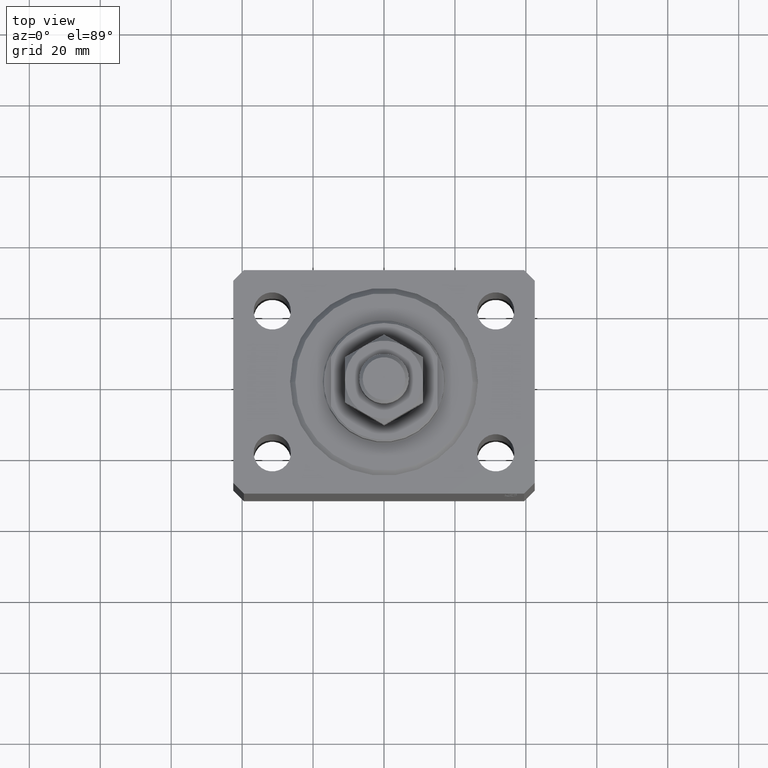
[diagram: clean part render]
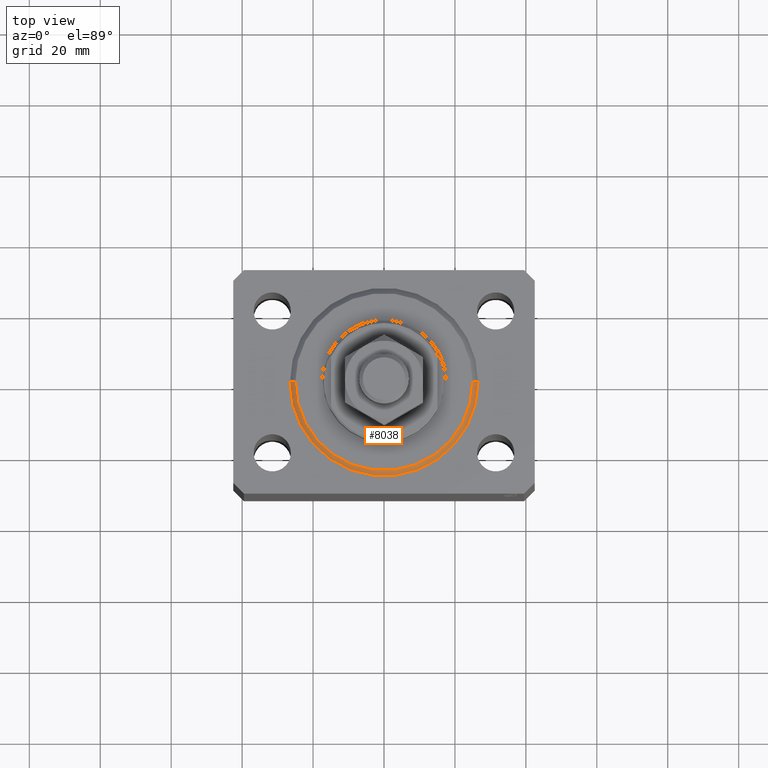
[diagram: same view with one face highlighted and labeled with its STEP entity id]
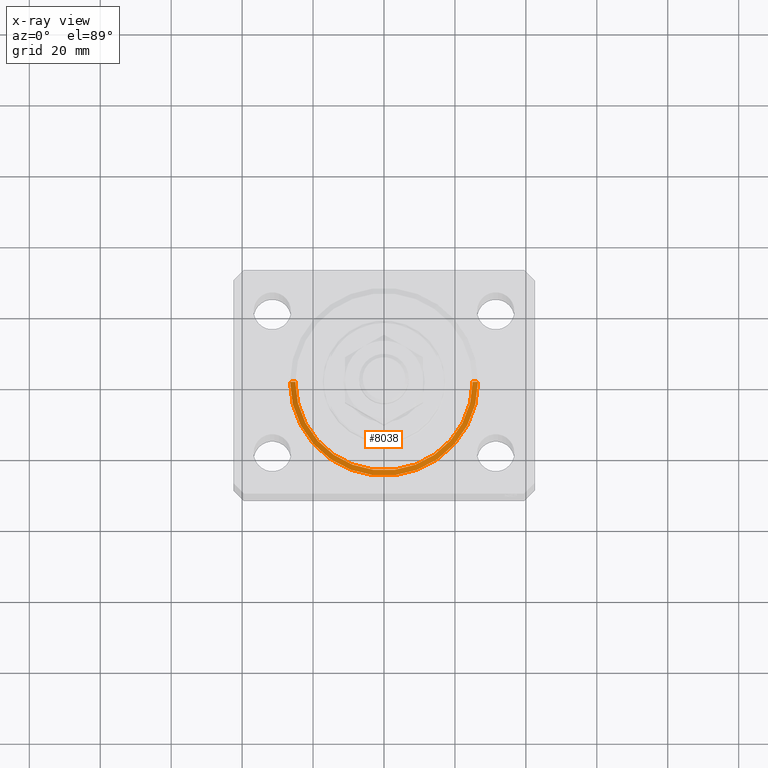
[diagram: x-ray of the same camera — body ghosted, the highlighted face saturated]
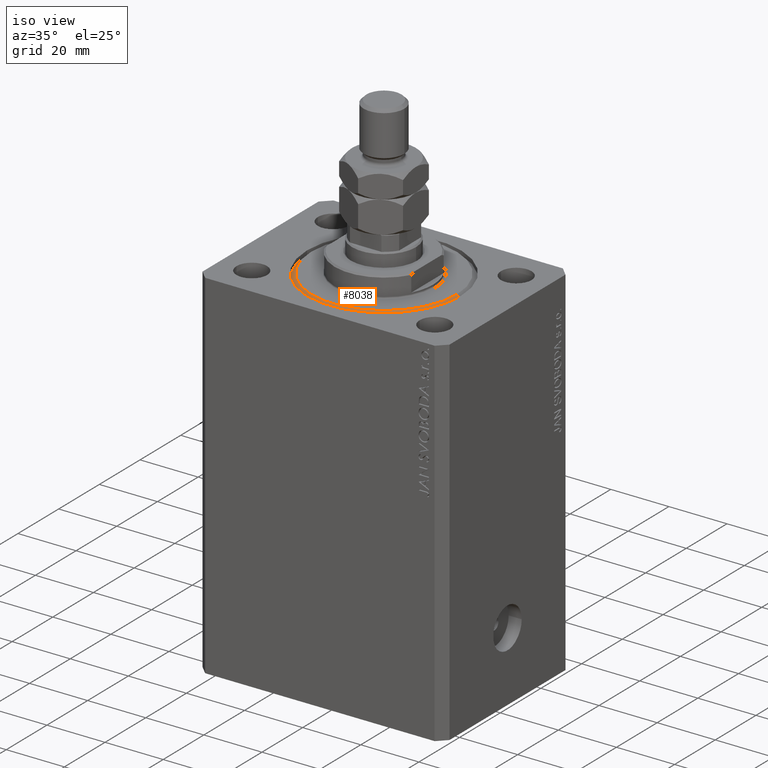
[diagram: same view with one face highlighted and labeled with its STEP entity id]
A machine part, top view. The second image highlights one B-rep face of the part: STEP entity #8038.
The next image is the same camera in x-ray: the body ghosted, the highlighted face saturated — about 0% of this face is hidden behind the body in this view.
A second angle (iso view) of the same face is appended — the face is thin or edge-on in the first view.
In plain terms, the highlighted conical surface has half-angle 45 deg.
Its self-contained STEP definition (entity closure, byte-faithful):
#945 = FACE_OUTER_BOUND ( 'NONE', #1632, .T. ) ;
#1350 = ORIENTED_EDGE ( 'NONE', *, *, #34283, .F. ) ;
#1391 = VERTEX_POINT ( 'NONE', #5090 ) ;
#1632 = EDGE_LOOP ( 'NONE', ( #22610, #1350, #29392, #35580 ) ) ;
#2028 = VERTEX_POINT ( 'NONE', #33735 ) ;
#4714 = CONICAL_SURFACE ( 'NONE', #9214, 26.50000000000000355, 0.7853981633974495002 ) ;
#5090 = CARTESIAN_POINT ( 'NONE',  ( -26.50000000000000355, 0.000000000000000000, 1.500000000000018652 ) ) ;
#5756 = CARTESIAN_POINT ( 'NONE',  ( 0.000000000000000000, 0.000000000000000000, 0.000000000000000000 ) ) ;
#7243 = AXIS2_PLACEMENT_3D ( 'NONE', #40855, #23352, #27546 ) ;
#7789 = CIRCLE ( 'NONE', #18221, 24.99999999999998224 ) ;
#8038 = ADVANCED_FACE ( 'NONE', ( #945 ), #4714, .T. ) ;
#9214 = AXIS2_PLACEMENT_3D ( 'NONE', #19606, #30350, #44587 ) ;
#15502 = DIRECTION ( 'NONE',  ( -0.7071067811865483499, 8.659560562354942719E-17, 0.7071067811865466846 ) ) ;
#16479 = CARTESIAN_POINT ( 'NONE',  ( 26.50000000000000355, 0.000000000000000000, 1.500000000000018652 ) ) ;
#18221 = AXIS2_PLACEMENT_3D ( 'NONE', #5756, #34467, #20008 ) ;
#18878 = VERTEX_POINT ( 'NONE', #41900 ) ;
#19606 = CARTESIAN_POINT ( 'NONE',  ( 0.000000000000000000, 0.000000000000000000, 1.500000000000018652 ) ) ;
#20008 = DIRECTION ( 'NONE',  ( 1.000000000000000000, 0.000000000000000000, 0.000000000000000000 ) ) ;
#21265 = VECTOR ( 'NONE', #22566, 1000.000000000000000 ) ;
#22566 = DIRECTION ( 'NONE',  ( 0.7071067811865483499, 0.000000000000000000, 0.7071067811865466846 ) ) ;
#22610 = ORIENTED_EDGE ( 'NONE', *, *, #39599, .F. ) ;
#23352 = DIRECTION ( 'NONE',  ( -0.000000000000000000, -0.000000000000000000, 1.000000000000000000 ) ) ;
#23377 = CARTESIAN_POINT ( 'NONE',  ( -24.99999999999998224, 3.153465507804433615E-15, 0.000000000000000000 ) ) ;
#24434 = CIRCLE ( 'NONE', #7243, 26.50000000000000355 ) ;
#26476 = CARTESIAN_POINT ( 'NONE',  ( -26.50000000000000355, 3.245314017740486554E-15, 1.500000000000018652 ) ) ;
#27546 = DIRECTION ( 'NONE',  ( 1.000000000000000000, 0.000000000000000000, 0.000000000000000000 ) ) ;
#29392 = ORIENTED_EDGE ( 'NONE', *, *, #32010, .T. ) ;
#29968 = LINE ( 'NONE', #26476, #41485 ) ;
#30350 = DIRECTION ( 'NONE',  ( -0.000000000000000000, -0.000000000000000000, 1.000000000000000000 ) ) ;
#32010 = EDGE_CURVE ( 'NONE', #2028, #18878, #44498, .T. ) ;
#33735 = CARTESIAN_POINT ( 'NONE',  ( 24.99999999999998224, 0.000000000000000000, 0.000000000000000000 ) ) ;
#34283 = EDGE_CURVE ( 'NONE', #2028, #39826, #7789, .T. ) ;
#34467 = DIRECTION ( 'NONE',  ( -0.000000000000000000, -0.000000000000000000, -1.000000000000000000 ) ) ;
#35580 = ORIENTED_EDGE ( 'NONE', *, *, #41359, .F. ) ;
#39599 = EDGE_CURVE ( 'NONE', #39826, #1391, #29968, .T. ) ;
#39826 = VERTEX_POINT ( 'NONE', #23377 ) ;
#40855 = CARTESIAN_POINT ( 'NONE',  ( 0.000000000000000000, 0.000000000000000000, 1.500000000000018652 ) ) ;
#41359 = EDGE_CURVE ( 'NONE', #1391, #18878, #24434, .T. ) ;
#41485 = VECTOR ( 'NONE', #15502, 1000.000000000000000 ) ;
#41900 = CARTESIAN_POINT ( 'NONE',  ( 26.50000000000000355, 3.245314017740486554E-15, 1.500000000000018652 ) ) ;
#44498 = LINE ( 'NONE', #16479, #21265 ) ;
#44587 = DIRECTION ( 'NONE',  ( 1.000000000000000000, 0.000000000000000000, 0.000000000000000000 ) ) ;